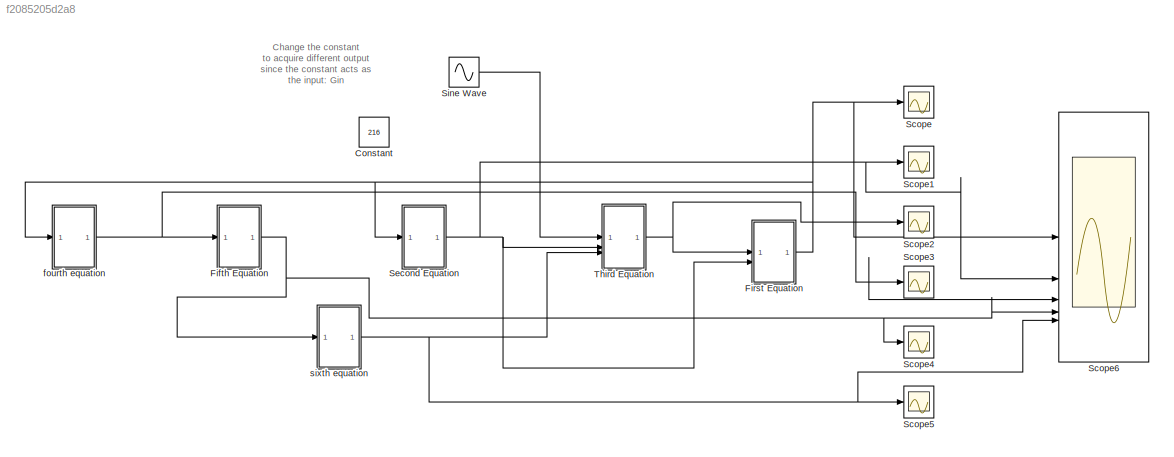
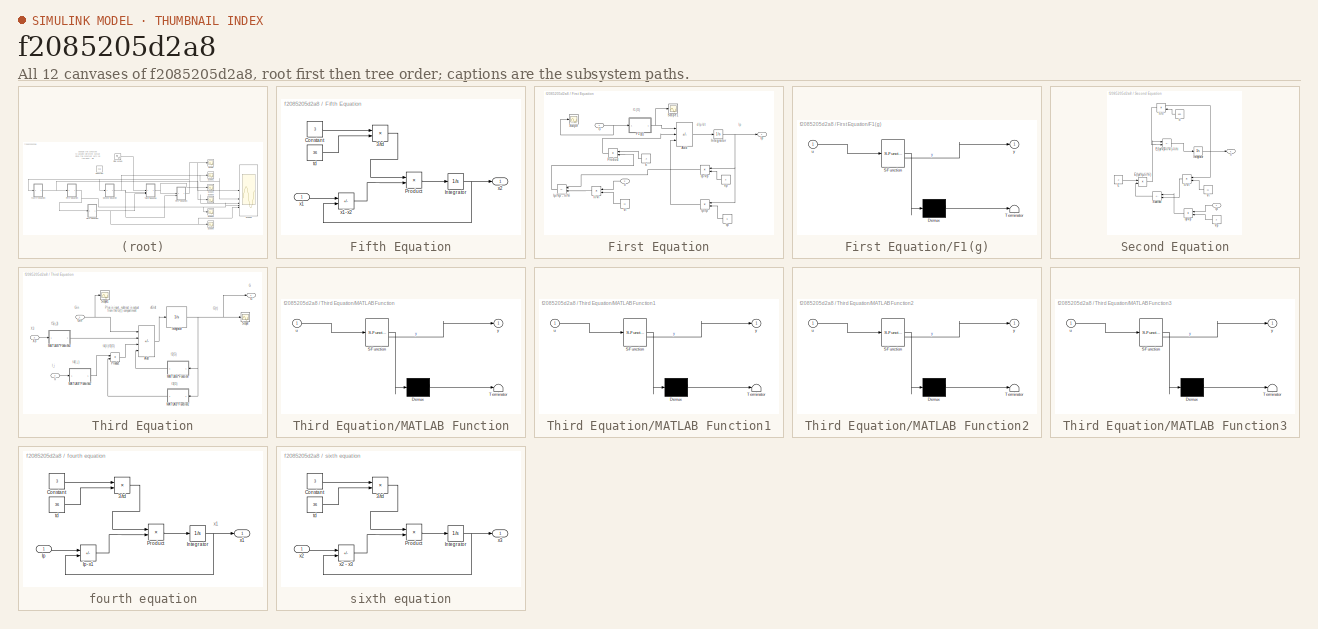
[diagram: thumbnail index - all 12 canvases of the model, root first then tree order]
MODEL slx_f2085205d2a8
KIND model
CONFIG AbsTol = auto
CONFIG EnableMultiTasking = off
CONFIG FixedStep = auto
CONFIG MaxStep = auto
CONFIG MinStep = auto
CONFIG RelTol = 1e-3
CONFIG SampleTimeConstraint = Unconstrained
CONFIG SolverName = VariableStepAuto
CONFIG StartTime = 0.0
CONFIG StopTime = 50
BLOCK [Constant] Constant
  Value = 216
BLOCK [SubSystem] Fifth Equation
BLOCK [Product] Fifth Equation/3//td
  Inputs = */
BLOCK [Constant] Fifth Equation/Constant
  Value = 3
BLOCK [Integrator] Fifth Equation/Integrator
  InitialCondition = .2
BLOCK [Product] Fifth Equation/Product
BLOCK [Constant] Fifth Equation/td
  Value = 36
BLOCK [Inport] Fifth Equation/x1
BLOCK [Sum] Fifth Equation/x1-x2
  IconShape = rectangular
  Inputs = +-
BLOCK [Outport] Fifth Equation/x2
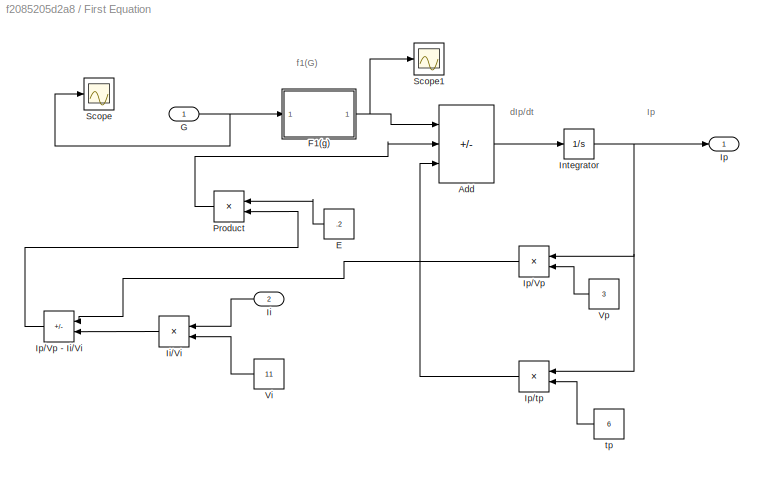
BLOCK [SubSystem] First Equation
BLOCK [Sum] First Equation/Add
  IconShape = rectangular
  Inputs = +--
BLOCK [Constant] First Equation/E
  Value = .2
BLOCK [SubSystem] First Equation/F1(g)
  ErrorFcn = Stateflow.Translate.translate
  LibrarySourceBlock = simulink/User-Defined\nFunctions/MATLAB Function
  PermitHierarchicalResolution = ExplicitOnly
  SFBlockType = MATLAB Function
  TreatAsAtomicUnit = on
BLOCK [Demux] First Equation/F1(g)/ Demux 
  Outputs = 1
BLOCK [S-Function] First Equation/F1(g)/ SFunction 
  EnableBusSupport = on
  FunctionName = sf_sfun
  PortCounts = [1 2]
  SFcnIsStateOwnerBlock = off
  SFunctionDeploymentMode = off
  Tag = Stateflow S-Function 5
BLOCK [Terminator] First Equation/F1(g)/ Terminator 
BLOCK [Inport] First Equation/F1(g)/u
BLOCK [Outport] First Equation/F1(g)/y
BLOCK [Inport] First Equation/G
BLOCK [Inport] First Equation/Ii
  Port = 2
BLOCK [Product] First Equation/Ii//Vi
  Inputs = */
BLOCK [Integrator] First Equation/Integrator
  InitialCondition = 90
BLOCK [Outport] First Equation/Ip
BLOCK [Product] First Equation/Ip//Vp
  Inputs = */
BLOCK [Sum] First Equation/Ip//Vp - Ii//Vi
  IconShape = rectangular
  Inputs = +-
BLOCK [Product] First Equation/Ip//tp
  Inputs = */
BLOCK [Product] First Equation/Product
BLOCK [Scope] First Equation/Scope
  Floating = off
  NumInputPorts = 1
  ScopeSpecificationString = Simulink.scopes.TimeScopeBlockCfg('CurrentConfiguration', extmgr.ConfigurationSet(extmgr.Configuration('Core','General UI',true),extmgr.Configuration('Core','Source UI',true),extmgr.Configuration('Sources','WiredSimulink',true,'DataLoggingVariableName','ScopeData2'),extmgr.Configuration('Visuals','Time Domain',true,'SerializedDisplays',{struct('MinYLimReal','-184.14256','MaxYLimReal','1827.283','Y...<+1370ch>
BLOCK [Scope] First Equation/Scope1
  Floating = off
  NumInputPorts = 1
  ScopeSpecificationString = Simulink.scopes.TimeScopeBlockCfg('CurrentConfiguration', extmgr.ConfigurationSet(extmgr.Configuration('Core','General UI',true),extmgr.Configuration('Core','Source UI',true),extmgr.Configuration('Sources','WiredSimulink',true,'DataLoggingVariableName','ScopeData3'),extmgr.Configuration('Visuals','Time Domain',true,'SerializedDisplays',{struct('MinYLimReal','0.24466','MaxYLimReal','0.48231','YLabe...<+1362ch>
BLOCK [Constant] First Equation/Vi
  Value = 11
BLOCK [Constant] First Equation/Vp
  Value = 3
BLOCK [Constant] First Equation/tp
  Value = 6
BLOCK [Scope] Scope
  Floating = off
  NumInputPorts = 1
  ScopeSpecificationString = Simulink.scopes.TimeScopeBlockCfg('CurrentConfiguration', extmgr.ConfigurationSet(extmgr.Configuration('Core','General UI',true),extmgr.Configuration('Core','Source UI',true),extmgr.Configuration('Sources','WiredSimulink',true,'DataLoggingVariableName','ScopeData1'),extmgr.Configuration('Visuals','Time Domain',true,'SerializedDisplays',{struct('MinYLimReal','-0.29881','MaxYLimReal','33.36653','YLa...<+1377ch>
BLOCK [Scope] Scope1
  Floating = off
  NumInputPorts = 1
  ScopeSpecificationString = Simulink.scopes.TimeScopeBlockCfg('CurrentConfiguration', extmgr.ConfigurationSet(extmgr.Configuration('Core','General UI',true),extmgr.Configuration('Core','Source UI',true),extmgr.Configuration('Sources','WiredSimulink',true,'DataLoggingVariableName','ScopeData2'),extmgr.Configuration('Visuals','Time Domain',true,'SerializedDisplays',{struct('MinYLimReal','13.00136','MaxYLimReal','31.16578','YLa...<+1380ch>
BLOCK [Scope] Scope2
  Floating = off
  NumInputPorts = 1
  ScopeSpecificationString = Simulink.scopes.TimeScopeBlockCfg('CurrentConfiguration', extmgr.ConfigurationSet(extmgr.Configuration('Core','General UI',true),extmgr.Configuration('Core','Source UI',true),extmgr.Configuration('Sources','WiredSimulink',true,'DataLoggingVariableName','ScopeData3'),extmgr.Configuration('Visuals','Time Domain',true,'SerializedDisplays',{struct('MinYLimReal','1.32874','MaxYLimReal','13333.1857','YL...<+1412ch>
BLOCK [Scope] Scope3
  Floating = off
  NumInputPorts = 1
  ScopeSpecificationString = Simulink.scopes.TimeScopeBlockCfg('CurrentConfiguration', extmgr.ConfigurationSet(extmgr.Configuration('Core','General UI',true),extmgr.Configuration('Core','Source UI',true),extmgr.Configuration('Sources','WiredSimulink',true,'DataLoggingVariableName','ScopeData4'),extmgr.Configuration('Visuals','Time Domain',true,'SerializedDisplays',{struct('MinYLimReal','-0.83272','MaxYLimReal','48.98141','YLa...<+1378ch>
BLOCK [Scope] Scope4
  Floating = off
  NumInputPorts = 1
  ScopeSpecificationString = Simulink.scopes.TimeScopeBlockCfg('CurrentConfiguration', extmgr.ConfigurationSet(extmgr.Configuration('Core','General UI',true),extmgr.Configuration('Core','Source UI',true),extmgr.Configuration('Sources','WiredSimulink',true,'DataLoggingVariableName','ScopeData5'),extmgr.Configuration('Visuals','Time Domain',true,'SerializedDisplays',{struct('MinYLimReal','3.91976','MaxYLimReal','38.02648','YLab...<+1375ch>
BLOCK [Scope] Scope5
  Floating = off
  NumInputPorts = 1
  ScopeSpecificationString = Simulink.scopes.TimeScopeBlockCfg('CurrentConfiguration', extmgr.ConfigurationSet(extmgr.Configuration('Core','General UI',true),extmgr.Configuration('Core','Source UI',true),extmgr.Configuration('Sources','WiredSimulink',true,'DataLoggingVariableName','ScopeData6'),extmgr.Configuration('Visuals','Time Domain',true,'SerializedDisplays',{struct('MinYLimReal','9.52772','MaxYLimReal','43.38581','YLab...<+1404ch>
BLOCK [Scope] Scope6
  Floating = off
  NumInputPorts = 5
  ScopeSpecificationString = Simulink.scopes.TimeScopeBlockCfg('CurrentConfiguration', extmgr.ConfigurationSet(extmgr.Configuration('Core','General UI',true),extmgr.Configuration('Core','Source UI',true),extmgr.Configuration('Sources','WiredSimulink',true,'DataLoggingVariableName','ScopeData7'),extmgr.Configuration('Visuals','Time Domain',true,'SerializedDisplays',{struct('MinYLimReal','-27.3875','MaxYLimReal','247.4875','YLa...<+1474ch>
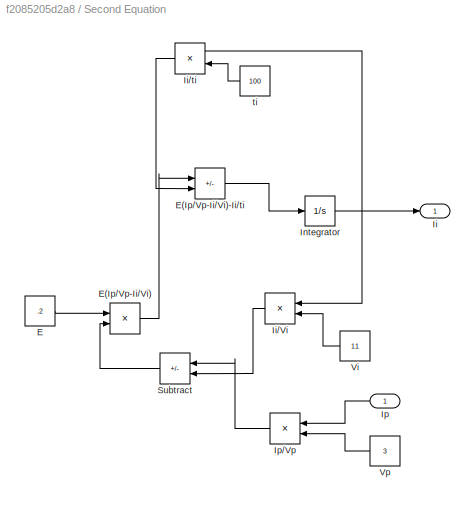
BLOCK [SubSystem] Second Equation
BLOCK [Constant] Second Equation/E
  Value = .2
BLOCK [Product] Second Equation/E(Ip//Vp-Ii//Vi)
BLOCK [Sum] Second Equation/E(Ip//Vp-Ii//Vi)-Ii//ti
  IconShape = rectangular
  Inputs = +-
BLOCK [Outport] Second Equation/Ii
BLOCK [Product] Second Equation/Ii//Vi
  Inputs = */
BLOCK [Product] Second Equation/Ii//ti
  Inputs = */
BLOCK [Integrator] Second Equation/Integrator
  InitialCondition = 220
BLOCK [Inport] Second Equation/Ip
BLOCK [Product] Second Equation/Ip//Vp
  Inputs = */
BLOCK [Sum] Second Equation/Subtract
  IconShape = rectangular
  Inputs = +-
BLOCK [Constant] Second Equation/Vi
  Value = 11
BLOCK [Constant] Second Equation/Vp
  Value = 3
BLOCK [Constant] Second Equation/ti
  Value = 100
BLOCK [Sin] Sine Wave
  Amplitude = 200
  SampleTime = 0
BLOCK [SubSystem] Third Equation
BLOCK [Sum] Third Equation/Add
  IconShape = rectangular
  Inputs = ++--
BLOCK [Outport] Third Equation/G
BLOCK [Inport] Third Equation/Gin
BLOCK [Inport] Third Equation/Ii
  Port = 2
BLOCK [Integrator] Third Equation/Integrator
  InitialCondition = 12000
BLOCK [SubSystem] Third Equation/MATLAB Function
  ErrorFcn = Stateflow.Translate.translate
  LibrarySourceBlock = simulink/User-Defined\nFunctions/MATLAB Function
  PermitHierarchicalResolution = ExplicitOnly
  SFBlockType = MATLAB Function
  TreatAsAtomicUnit = on
BLOCK [Demux] Third Equation/MATLAB Function/ Demux 
  Outputs = 1
BLOCK [S-Function] Third Equation/MATLAB Function/ SFunction 
  EnableBusSupport = on
  FunctionName = sf_sfun
  PortCounts = [1 2]
  SFcnIsStateOwnerBlock = off
  SFunctionDeploymentMode = off
  Tag = Stateflow S-Function 2
BLOCK [Terminator] Third Equation/MATLAB Function/ Terminator 
BLOCK [Inport] Third Equation/MATLAB Function/u
BLOCK [Outport] Third Equation/MATLAB Function/y
BLOCK [SubSystem] Third Equation/MATLAB Function1
  ErrorFcn = Stateflow.Translate.translate
  LibrarySourceBlock = simulink/User-Defined\nFunctions/MATLAB Function
  PermitHierarchicalResolution = ExplicitOnly
  SFBlockType = MATLAB Function
  TreatAsAtomicUnit = on
BLOCK [Demux] Third Equation/MATLAB Function1/ Demux 
  Outputs = 1
BLOCK [S-Function] Third Equation/MATLAB Function1/ SFunction 
  EnableBusSupport = on
  FunctionName = sf_sfun
  PortCounts = [1 2]
  SFcnIsStateOwnerBlock = off
  SFunctionDeploymentMode = off
  Tag = Stateflow S-Function 1
BLOCK [Terminator] Third Equation/MATLAB Function1/ Terminator 
BLOCK [Inport] Third Equation/MATLAB Function1/u
BLOCK [Outport] Third Equation/MATLAB Function1/y
BLOCK [SubSystem] Third Equation/MATLAB Function2
  ErrorFcn = Stateflow.Translate.translate
  LibrarySourceBlock = simulink/User-Defined\nFunctions/MATLAB Function
  PermitHierarchicalResolution = ExplicitOnly
  SFBlockType = MATLAB Function
  TreatAsAtomicUnit = on
BLOCK [Demux] Third Equation/MATLAB Function2/ Demux 
  Outputs = 1
BLOCK [S-Function] Third Equation/MATLAB Function2/ SFunction 
  EnableBusSupport = on
  FunctionName = sf_sfun
  PortCounts = [1 2]
  SFcnIsStateOwnerBlock = off
  SFunctionDeploymentMode = off
  Tag = Stateflow S-Function 3
BLOCK [Terminator] Third Equation/MATLAB Function2/ Terminator 
BLOCK [Inport] Third Equation/MATLAB Function2/u
BLOCK [Outport] Third Equation/MATLAB Function2/y
BLOCK [SubSystem] Third Equation/MATLAB Function3
  ErrorFcn = Stateflow.Translate.translate
  LibrarySourceBlock = simulink/User-Defined\nFunctions/MATLAB Function
  PermitHierarchicalResolution = ExplicitOnly
  SFBlockType = MATLAB Function
  TreatAsAtomicUnit = on
BLOCK [Demux] Third Equation/MATLAB Function3/ Demux 
  Outputs = 1
BLOCK [S-Function] Third Equation/MATLAB Function3/ SFunction 
  EnableBusSupport = on
  FunctionName = sf_sfun
  PortCounts = [1 2]
  SFcnIsStateOwnerBlock = off
  SFunctionDeploymentMode = off
  Tag = Stateflow S-Function 4
BLOCK [Terminator] Third Equation/MATLAB Function3/ Terminator 
BLOCK [Inport] Third Equation/MATLAB Function3/u
BLOCK [Outport] Third Equation/MATLAB Function3/y
BLOCK [Product] Third Equation/Product
BLOCK [Scope] Third Equation/Scope
  Floating = off
  NumInputPorts = 1
  ScopeSpecificationString = Simulink.scopes.TimeScopeBlockCfg('CurrentConfiguration', extmgr.ConfigurationSet(extmgr.Configuration('Core','General UI',true),extmgr.Configuration('Core','Source UI',true),extmgr.Configuration('Sources','WiredSimulink',true),extmgr.Configuration('Visuals','Time Domain',true,'SerializedDisplays',{struct('MinYLimReal','-159.76691','MaxYLimReal','1607.90216','YLabelReal','','MinYLimMag',' 0.00000'...<+1348ch>
BLOCK [Scope] Third Equation/Scope1
  Floating = off
  NumInputPorts = 1
  ScopeSpecificationString = Simulink.scopes.TimeScopeBlockCfg('CurrentConfiguration', extmgr.ConfigurationSet(extmgr.Configuration('Core','General UI',true),extmgr.Configuration('Core','Source UI',true),extmgr.Configuration('Sources','WiredSimulink',true,'DataLoggingVariableName','ScopeData1'),extmgr.Configuration('Visuals','Time Domain',true,'SerializedDisplays',{struct('MinYLimReal','-269.67548','MaxYLimReal','269.76229','...<+1411ch>
BLOCK [Inport] Third Equation/X3
  Port = 3
BLOCK [SubSystem] fourth equation
BLOCK [Product] fourth equation/3//td
  Inputs = */
BLOCK [Constant] fourth equation/Constant
  Value = 3
BLOCK [Integrator] fourth equation/Integrator
  InitialCondition = .1
BLOCK [Inport] fourth equation/Ip
BLOCK [Sum] fourth equation/Ip-x1
  IconShape = rectangular
  Inputs = +-
BLOCK [Product] fourth equation/Product
BLOCK [Constant] fourth equation/td
  Value = 36
BLOCK [Outport] fourth equation/x1
BLOCK [SubSystem] sixth equation
BLOCK [Product] sixth equation/3//td
  Inputs = */
BLOCK [Constant] sixth equation/Constant
  Value = 3
BLOCK [Integrator] sixth equation/Integrator
  InitialCondition = .1
BLOCK [Product] sixth equation/Product
BLOCK [Constant] sixth equation/td
  Value = 36
BLOCK [Inport] sixth equation/x2
BLOCK [Sum] sixth equation/x2 - x3
  IconShape = rectangular
  Inputs = +-
BLOCK [Outport] sixth equation/x3
ANNOTATION (root): Change the constant to acquire different output since the constant acts as the input: Gin
ANNOTATION First Equation: Ip
ANNOTATION First Equation: dIp/dt
ANNOTATION First Equation: f1(G)
ANNOTATION Third Equation: G
ANNOTATION Third Equation: G(t)
ANNOTATION Third Equation: Gin
ANNOTATION Third Equation: I_i
ANNOTATION Third Equation: Plus is input, subtract is output from the G(t) compartment
ANNOTATION Third Equation: X3
ANNOTATION Third Equation: dG/dt
ANNOTATION Third Equation: f2(G)
ANNOTATION Third Equation: f3(G)
ANNOTATION Third Equation: f4(I_i)
ANNOTATION Third Equation: f4(Ii)f3(G)
ANNOTATION Third Equation: f5(x_3)
ANNOTATION fourth equation: x1
LINE Fifth Equation/3//td:1 -> Fifth Equation/Product:1
LINE Fifth Equation/Constant:1 -> Fifth Equation/3//td:1
NET Fifth Equation/Integrator:1 -> Fifth Equation/x1-x2:2, Fifth Equation/x2:1
LINE Fifth Equation/Product:1 -> Fifth Equation/Integrator:1
LINE Fifth Equation/td:1 -> Fifth Equation/3//td:2
LINE Fifth Equation/x1-x2:1 -> Fifth Equation/Product:2
LINE Fifth Equation/x1:1 -> Fifth Equation/x1-x2:1
NET Fifth Equation:1 -> Scope4:1, Scope6:4, sixth equation:1
LINE First Equation/Add:1 -> First Equation/Integrator:1
LINE First Equation/E:1 -> First Equation/Product:1
NET First Equation/F1(g):1 -> First Equation/Add:1, First Equation/Scope1:1
NET First Equation/G:1 -> First Equation/F1(g):1, First Equation/Scope:1
LINE First Equation/Ii//Vi:1 -> First Equation/Ip//Vp - Ii//Vi:2
LINE First Equation/Ii:1 -> First Equation/Ii//Vi:1
NET First Equation/Integrator:1 -> First Equation/Ip//Vp:1, First Equation/Ip//tp:1, First Equation/Ip:1
LINE First Equation/Ip//Vp - Ii//Vi:1 -> First Equation/Product:2
LINE First Equation/Ip//Vp:1 -> First Equation/Ip//Vp - Ii//Vi:1
LINE First Equation/Ip//tp:1 -> First Equation/Add:3
LINE First Equation/Product:1 -> First Equation/Add:2
LINE First Equation/Vi:1 -> First Equation/Ii//Vi:2
LINE First Equation/Vp:1 -> First Equation/Ip//Vp:2
LINE First Equation/tp:1 -> First Equation/Ip//tp:2
NET First Equation:1 -> Scope6:1, Scope:1, Second Equation:1, fourth equation:1
LINE Second Equation/E(Ip//Vp-Ii//Vi)-Ii//ti:1 -> Second Equation/Integrator:1
LINE Second Equation/E(Ip//Vp-Ii//Vi):1 -> Second Equation/E(Ip//Vp-Ii//Vi)-Ii//ti:1
LINE Second Equation/E:1 -> Second Equation/E(Ip//Vp-Ii//Vi):1
LINE Second Equation/Ii//Vi:1 -> Second Equation/Subtract:2
LINE Second Equation/Ii//ti:1 -> Second Equation/E(Ip//Vp-Ii//Vi)-Ii//ti:2
NET Second Equation/Integrator:1 -> Second Equation/Ii//Vi:1, Second Equation/Ii//ti:1, Second Equation/Ii:1
LINE Second Equation/Ip//Vp:1 -> Second Equation/Subtract:1
LINE Second Equation/Ip:1 -> Second Equation/Ip//Vp:1
LINE Second Equation/Subtract:1 -> Second Equation/E(Ip//Vp-Ii//Vi):2
LINE Second Equation/Vi:1 -> Second Equation/Ii//Vi:2
LINE Second Equation/Vp:1 -> Second Equation/Ip//Vp:2
LINE Second Equation/ti:1 -> Second Equation/Ii//ti:2
NET Second Equation:1 -> First Equation:2, Scope1:1, Scope6:2, Third Equation:2
LINE Sine Wave:1 -> Third Equation:1
LINE Third Equation/Add:1 -> Third Equation/Integrator:1
NET Third Equation/Gin:1 -> Third Equation/Add:1, Third Equation/Scope1:1
LINE Third Equation/Ii:1 -> Third Equation/MATLAB Function2:1
NET Third Equation/Integrator:1 -> Third Equation/G:1, Third Equation/MATLAB Function1:1, Third Equation/MATLAB Function:1, Third Equation/Scope:1
LINE Third Equation/MATLAB Function1:1 -> Third Equation/Product:2
LINE Third Equation/MATLAB Function2:1 -> Third Equation/Product:1
LINE Third Equation/MATLAB Function3:1 -> Third Equation/Add:2
LINE Third Equation/MATLAB Function:1 -> Third Equation/Add:4
LINE Third Equation/Product:1 -> Third Equation/Add:3
LINE Third Equation/X3:1 -> Third Equation/MATLAB Function3:1
NET Third Equation:1 -> First Equation:1, Scope2:1
LINE fourth equation/3//td:1 -> fourth equation/Product:1
LINE fourth equation/Constant:1 -> fourth equation/3//td:1
NET fourth equation/Integrator:1 -> fourth equation/Ip-x1:2, fourth equation/x1:1
LINE fourth equation/Ip-x1:1 -> fourth equation/Product:2
LINE fourth equation/Ip:1 -> fourth equation/Ip-x1:1
LINE fourth equation/Product:1 -> fourth equation/Integrator:1
LINE fourth equation/td:1 -> fourth equation/3//td:2
NET fourth equation:1 -> Fifth Equation:1, Scope3:1, Scope6:3
LINE sixth equation/3//td:1 -> sixth equation/Product:1
LINE sixth equation/Constant:1 -> sixth equation/3//td:1
NET sixth equation/Integrator:1 -> sixth equation/x2 - x3:2, sixth equation/x3:1
LINE sixth equation/Product:1 -> sixth equation/Integrator:1
LINE sixth equation/td:1 -> sixth equation/3//td:2
LINE sixth equation/x2 - x3:1 -> sixth equation/Product:2
LINE sixth equation/x2:1 -> sixth equation/x2 - x3:1
NET sixth equation:1 -> Scope5:1, Scope6:5, Third Equation:3
note: NET lines group one-source signal fan-out (src -> all destinations, sorted); 1:1 wires keep LINE
CHART Third Equation/MATLAB Function states=1 transitions=1
  STATE_LABEL 'eML_blk_kernel()'
  STATE_LABEL 'SCRIPT:\n% f2(g) function\n% u = G\n\nfunction y = fcn(u)\nC2 = 144;\nVg = 10;\nUb = 72;\n\ny = Ub*(1-exp(-u/(C2*Vg)));\n'
CHART Third Equation/MATLAB Function2 states=1 transitions=1
  STATE_LABEL 'eML_blk_kernel()'
  STATE_LABEL 'SCRIPT:\n%f4(Ii)\n% u = Ii\n\n\nfunction y = fcn(u)\nUm = 940;\nUo = 40;\nBeta = 1.77;\nC4 = 80;\nVi = 11;\nE = .2;\nti = 100;\n%i changed the ti paranthesis\n%y = Uo + ((Um - Uo)/(1+exp(-Beta*log(u/C4*(1/Vi+1/E*ti)))));\ny = Uo + ((Um - Uo)/(1+exp(-Beta)*(u/C4)*(1/Vi+1/(E*ti))));\n'
CHART Third Equation/MATLAB Function3 states=1 transitions=1
  STATE_LABEL 'eML_blk_kernel()'
  STATE_LABEL 'SCRIPT:\n%f5(x3)\n% u = x3\n\nfunction y = fcn(u)\nRg = 180;\nalph = .29;\nVp = 3;\nC5 = 26;\n\ny = Rg/(1+exp(alph*(u/Vp - C5)));\n'
CHART First Equation/F1(g) states=1 transitions=1
  STATE_LABEL 'eML_blk_kernel()'
  STATE_LABEL 'SCRIPT:\n%f1(G)\n% u = G\nfunction y = fcn(u)\nRm = 210;\nC1 = 2000;\nVg = 10;\na1 = 300;\n\ny = Rm/(1+exp((C1 - u/Vg)/a1));\n'
CHART Third Equation/MATLAB Function1 states=1 transitions=1
  STATE_LABEL 'eML_blk_kernel()'
  STATE_LABEL 'SCRIPT:\n%f3(G)\n% u = G\n\n\nfunction y = fcn(u)\nC3 = 1000;\nVg = 10;\n\ny = u/(C3*Vg);\n'
CHART  states=0 transitions=0
CHART  states=0 transitions=0
CHART  states=0 transitions=0
CHART  states=0 transitions=0
CHART  states=0 transitions=0
